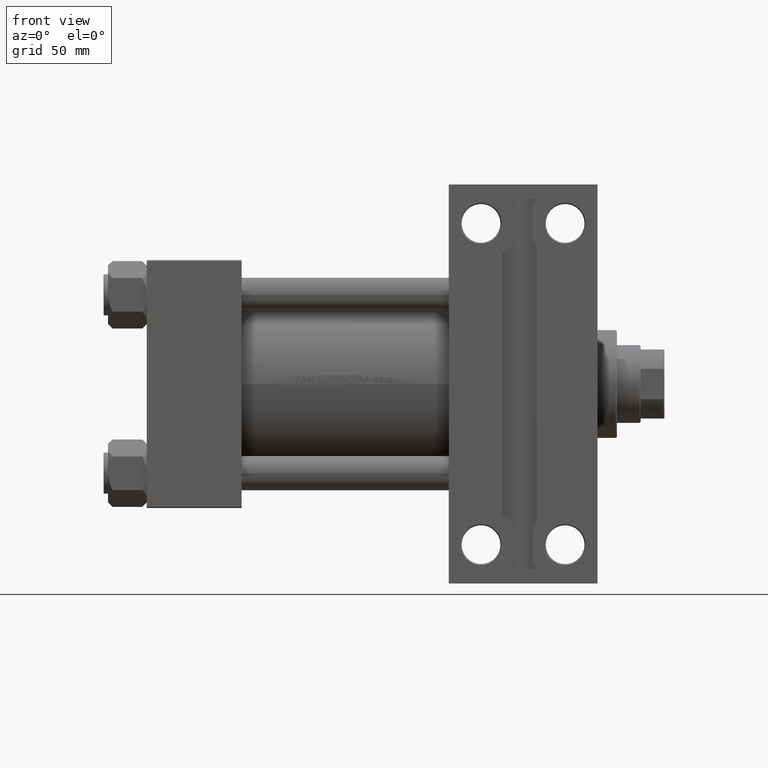
[diagram: clean part render]
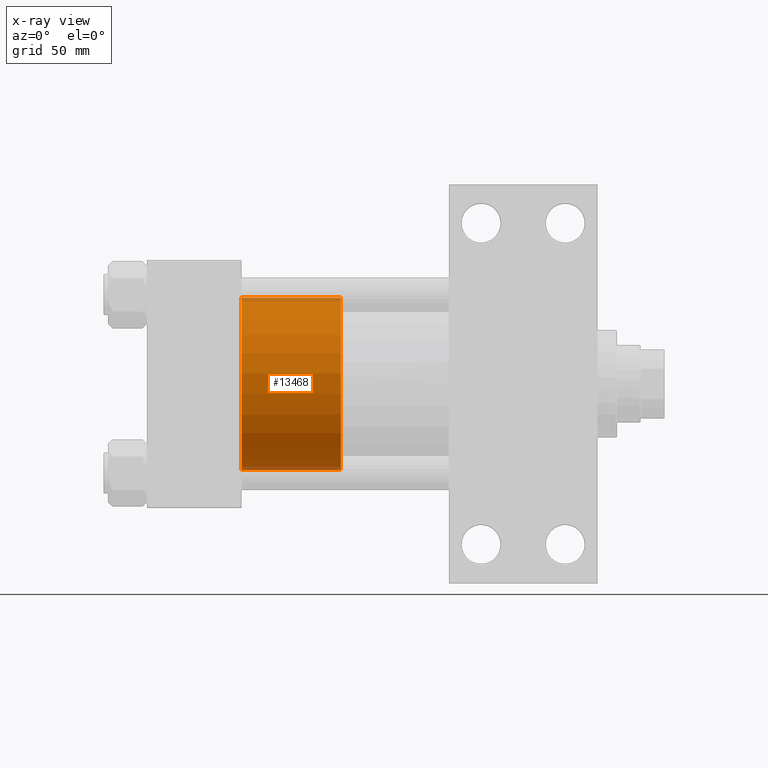
[diagram: x-ray — body ghosted, one internal face saturated and labeled with its STEP entity id]
A machine part, front view, then the same camera in x-ray: the body is ghosted and one INTERNAL B-rep face — a face not visible from any outside direction — is saturated and labeled: STEP entity #13468.
In plain terms, the highlighted cylindrical surface (partial cylindrical patch) has radius 40 mm, axis along (-1, 0, 0).
Its self-contained STEP definition (entity closure, byte-faithful):
#2322 = AXIS2_PLACEMENT_3D ( 'NONE', #19025, #14908, #37296 ) ;
#9430 = EDGE_CURVE ( 'NONE', #44288, #17484, #11276, .T. ) ;
#10085 = CARTESIAN_POINT ( 'NONE',  ( 40.00000000000000000, 4.898587196589413026E-15, 46.00000000000000000 ) ) ;
#11276 = CIRCLE ( 'NONE', #19813, 40.00000000000000000 ) ;
#11371 = LINE ( 'NONE', #18886, #23322 ) ;
#12151 = DIRECTION ( 'NONE',  ( -0.000000000000000000, -0.000000000000000000, -1.000000000000000000 ) ) ;
#13468 = ADVANCED_FACE ( 'NONE', ( #38902 ), #37946, .T. ) ;
#14606 = EDGE_LOOP ( 'NONE', ( #33963, #33881, #18502, #38531 ) ) ;
#14908 = DIRECTION ( 'NONE',  ( 0.000000000000000000, 0.000000000000000000, 1.000000000000000000 ) ) ;
#17484 = VERTEX_POINT ( 'NONE', #45665 ) ;
#18502 = ORIENTED_EDGE ( 'NONE', *, *, #9430, .T. ) ;
#18886 = CARTESIAN_POINT ( 'NONE',  ( -40.00000000000000000, 0.000000000000000000, 46.00000000000000000 ) ) ;
#19025 = CARTESIAN_POINT ( 'NONE',  ( 0.000000000000000000, 0.000000000000000000, 46.00000000000000000 ) ) ;
#19554 = VERTEX_POINT ( 'NONE', #28335 ) ;
#19813 = AXIS2_PLACEMENT_3D ( 'NONE', #29229, #47026, #39473 ) ;
#19923 = CARTESIAN_POINT ( 'NONE',  ( 0.000000000000000000, 0.000000000000000000, 46.00000000000000000 ) ) ;
#23322 = VECTOR ( 'NONE', #47890, 1000.000000000000000 ) ;
#24531 = CARTESIAN_POINT ( 'NONE',  ( 40.00000000000000000, 4.898587196589413026E-15, 46.00000000000000000 ) ) ;
#25241 = DIRECTION ( 'NONE',  ( -0.000000000000000000, -0.000000000000000000, -1.000000000000000000 ) ) ;
#28335 = CARTESIAN_POINT ( 'NONE',  ( -40.00000000000000000, 0.000000000000000000, 46.00000000000000000 ) ) ;
#29229 = CARTESIAN_POINT ( 'NONE',  ( 0.000000000000000000, 0.000000000000000000, 0.000000000000000000 ) ) ;
#30703 = VERTEX_POINT ( 'NONE', #10085 ) ;
#31352 = DIRECTION ( 'NONE',  ( -1.000000000000000000, 0.000000000000000000, 0.000000000000000000 ) ) ;
#33144 = AXIS2_PLACEMENT_3D ( 'NONE', #19923, #12151, #31352 ) ;
#33881 = ORIENTED_EDGE ( 'NONE', *, *, #38960, .T. ) ;
#33963 = ORIENTED_EDGE ( 'NONE', *, *, #38416, .F. ) ;
#35732 = LINE ( 'NONE', #24531, #38031 ) ;
#37296 = DIRECTION ( 'NONE',  ( 1.000000000000000000, 0.000000000000000000, 0.000000000000000000 ) ) ;
#37946 = CYLINDRICAL_SURFACE ( 'NONE', #33144, 40.00000000000000000 ) ;
#38031 = VECTOR ( 'NONE', #25241, 1000.000000000000000 ) ;
#38416 = EDGE_CURVE ( 'NONE', #30703, #19554, #45063, .T. ) ;
#38531 = ORIENTED_EDGE ( 'NONE', *, *, #40576, .F. ) ;
#38902 = FACE_OUTER_BOUND ( 'NONE', #14606, .T. ) ;
#38960 = EDGE_CURVE ( 'NONE', #30703, #44288, #35732, .T. ) ;
#39473 = DIRECTION ( 'NONE',  ( 1.000000000000000000, 0.000000000000000000, 0.000000000000000000 ) ) ;
#40576 = EDGE_CURVE ( 'NONE', #19554, #17484, #11371, .T. ) ;
#44032 = CARTESIAN_POINT ( 'NONE',  ( 40.00000000000000000, 4.898587196589413026E-15, 0.000000000000000000 ) ) ;
#44288 = VERTEX_POINT ( 'NONE', #44032 ) ;
#45063 = CIRCLE ( 'NONE', #2322, 40.00000000000000000 ) ;
#45665 = CARTESIAN_POINT ( 'NONE',  ( -40.00000000000000000, 0.000000000000000000, 0.000000000000000000 ) ) ;
#47026 = DIRECTION ( 'NONE',  ( 0.000000000000000000, 0.000000000000000000, 1.000000000000000000 ) ) ;
#47890 = DIRECTION ( 'NONE',  ( -0.000000000000000000, -0.000000000000000000, -1.000000000000000000 ) ) ;